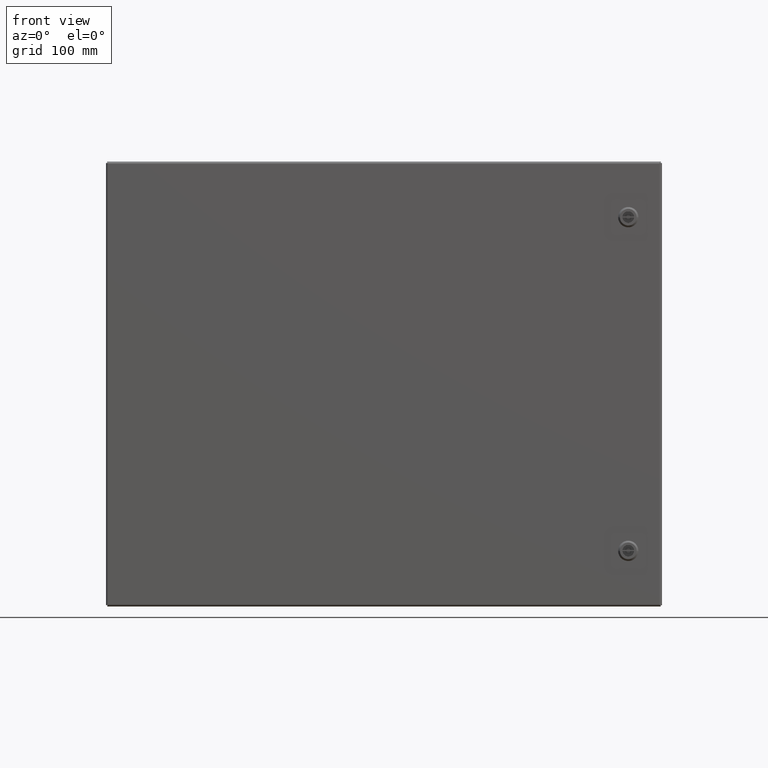
[diagram: clean part render]
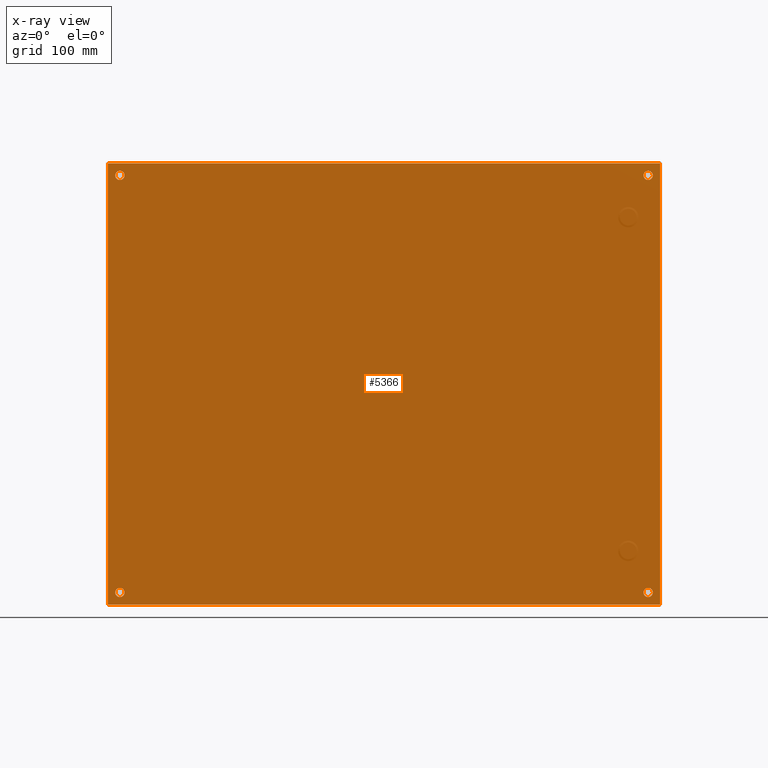
[diagram: x-ray — body ghosted, one internal face saturated and labeled with its STEP entity id]
A machine part, front view, then the same camera in x-ray: the body is ghosted and one INTERNAL B-rep face — a face not visible from any outside direction — is saturated and labeled: STEP entity #5366.
In plain terms, the highlighted planar face has unit normal (0, -1, -0).
Its self-contained STEP definition (entity closure, byte-faithful):
#165 = DIRECTION ( 'NONE',  ( 0.0000000000000000000, -1.000000000000000000, -0.0000000000000000000 ) ) ;
#398 = ORIENTED_EDGE ( 'NONE', *, *, #18365, .T. ) ;
#760 = ORIENTED_EDGE ( 'NONE', *, *, #12721, .T. ) ;
#1159 = CIRCLE ( 'NONE', #5802, 0.2500000000000008882 ) ;
#1166 = DIRECTION ( 'NONE',  ( 1.000000000000000000, 0.0000000000000000000, 0.0000000000000000000 ) ) ;
#1354 = VERTEX_POINT ( 'NONE', #17094 ) ;
#2201 = AXIS2_PLACEMENT_3D ( 'NONE', #4647, #22921, #6503 ) ;
#2407 = CARTESIAN_POINT ( 'NONE',  ( -14.00000000000000000, -0.07199999999999857903, -11.25000000000000000 ) ) ;
#2625 = AXIS2_PLACEMENT_3D ( 'NONE', #4128, #165, #8233 ) ;
#3046 = CIRCLE ( 'NONE', #2201, 0.2500000000000008882 ) ;
#3112 = VERTEX_POINT ( 'NONE', #3607 ) ;
#3391 = CARTESIAN_POINT ( 'NONE',  ( -14.92799999999999905, -0.07200000000000000844, 11.89200000000000124 ) ) ;
#3420 = CARTESIAN_POINT ( 'NONE',  ( 14.50000000000000178, -0.07199999999999857903, -11.25000000000000000 ) ) ;
#3525 = DIRECTION ( 'NONE',  ( -1.000000000000000000, 0.0000000000000000000, -6.123031769111889989E-17 ) ) ;
#3529 = CARTESIAN_POINT ( 'NONE',  ( -14.92799999999999905, -0.07200000000000000844, -11.89200000000000124 ) ) ;
#3607 = CARTESIAN_POINT ( 'NONE',  ( 14.89200000000000124, -0.07199999999999980027, 11.89200000000000124 ) ) ;
#3924 = EDGE_CURVE ( 'NONE', #6342, #22305, #10663, .T. ) ;
#4128 = CARTESIAN_POINT ( 'NONE',  ( -14.92799999999999905, -0.07200000000000000844, 11.92800000000000082 ) ) ;
#4492 = DIRECTION ( 'NONE',  ( 1.000000000000000000, 0.0000000000000000000, 0.0000000000000000000 ) ) ;
#4523 = DIRECTION ( 'NONE',  ( 0.0000000000000000000, 1.000000000000000000, 0.0000000000000000000 ) ) ;
#4609 = CARTESIAN_POINT ( 'NONE',  ( 14.25000000000000000, -0.07199999999999857903, 11.25000000000000000 ) ) ;
#4647 = CARTESIAN_POINT ( 'NONE',  ( 14.25000000000000000, -0.07199999999999857903, -11.25000000000000000 ) ) ;
#4731 = VERTEX_POINT ( 'NONE', #8984 ) ;
#5245 = EDGE_CURVE ( 'NONE', #25354, #20732, #25051, .T. ) ;
#5366 = ADVANCED_FACE ( 'NONE', ( #6364, #8493, #10600, #8101, #18567 ), #6108, .T. ) ;
#5675 = CARTESIAN_POINT ( 'NONE',  ( -14.89200000000000124, -0.07200000000000097988, -11.89199999999999413 ) ) ;
#5802 = AXIS2_PLACEMENT_3D ( 'NONE', #11757, #17993, #24193 ) ;
#6085 = EDGE_LOOP ( 'NONE', ( #18192, #6343 ) ) ;
#6108 = PLANE ( 'NONE',  #2625 ) ;
#6342 = VERTEX_POINT ( 'NONE', #2407 ) ;
#6343 = ORIENTED_EDGE ( 'NONE', *, *, #12214, .T. ) ;
#6364 = FACE_BOUND ( 'NONE', #12899, .T. ) ;
#6433 = CIRCLE ( 'NONE', #14058, 0.2500000000000008882 ) ;
#6503 = DIRECTION ( 'NONE',  ( 1.000000000000000000, 0.0000000000000000000, 0.0000000000000000000 ) ) ;
#6536 = ORIENTED_EDGE ( 'NONE', *, *, #9877, .T. ) ;
#6912 = VERTEX_POINT ( 'NONE', #3420 ) ;
#7304 = EDGE_CURVE ( 'NONE', #4731, #16068, #17747, .T. ) ;
#7335 = EDGE_LOOP ( 'NONE', ( #13517, #12490, #398, #6536 ) ) ;
#7444 = ORIENTED_EDGE ( 'NONE', *, *, #17869, .T. ) ;
#8101 = FACE_BOUND ( 'NONE', #12485, .T. ) ;
#8233 = DIRECTION ( 'NONE',  ( -1.000000000000000000, 0.0000000000000000000, -6.123031769111889989E-17 ) ) ;
#8493 = FACE_OUTER_BOUND ( 'NONE', #7335, .T. ) ;
#8593 = CARTESIAN_POINT ( 'NONE',  ( -14.25000000000000000, -0.07199999999999857903, -11.25000000000000000 ) ) ;
#8887 = DIRECTION ( 'NONE',  ( 1.000000000000000000, 0.0000000000000000000, 0.0000000000000000000 ) ) ;
#8984 = CARTESIAN_POINT ( 'NONE',  ( -14.50000000000000178, -0.07199999999999857903, 11.25000000000000000 ) ) ;
#9452 = ORIENTED_EDGE ( 'NONE', *, *, #3924, .T. ) ;
#9767 = CARTESIAN_POINT ( 'NONE',  ( -14.25000000000000000, -0.07199999999999857903, -11.25000000000000000 ) ) ;
#9877 = EDGE_CURVE ( 'NONE', #14088, #1354, #19816, .T. ) ;
#10008 = EDGE_CURVE ( 'NONE', #1354, #3112, #19136, .T. ) ;
#10060 = CARTESIAN_POINT ( 'NONE',  ( -14.89200000000000124, -0.07200000000000000844, 11.92800000000000082 ) ) ;
#10257 = DIRECTION ( 'NONE',  ( 1.000000000000000000, 0.0000000000000000000, 0.0000000000000000000 ) ) ;
#10600 = FACE_BOUND ( 'NONE', #10892, .T. ) ;
#10663 = CIRCLE ( 'NONE', #14045, 0.2500000000000008882 ) ;
#10892 = EDGE_LOOP ( 'NONE', ( #7444, #25068 ) ) ;
#11304 = CARTESIAN_POINT ( 'NONE',  ( -14.00000000000000000, -0.07199999999999857903, 11.25000000000000000 ) ) ;
#11599 = ORIENTED_EDGE ( 'NONE', *, *, #18575, .T. ) ;
#11600 = DIRECTION ( 'NONE',  ( 1.000000000000000000, -0.0000000000000000000, 6.123031769111889989E-17 ) ) ;
#11757 = CARTESIAN_POINT ( 'NONE',  ( -14.25000000000000000, -0.07199999999999857903, 11.25000000000000000 ) ) ;
#12214 = EDGE_CURVE ( 'NONE', #15157, #6912, #3046, .T. ) ;
#12218 = EDGE_CURVE ( 'NONE', #6912, #15157, #13189, .T. ) ;
#12453 = CARTESIAN_POINT ( 'NONE',  ( 14.25000000000000000, -0.07199999999999857903, 11.25000000000000000 ) ) ;
#12485 = EDGE_LOOP ( 'NONE', ( #9452, #760 ) ) ;
#12490 = ORIENTED_EDGE ( 'NONE', *, *, #18863, .T. ) ;
#12721 = EDGE_CURVE ( 'NONE', #22305, #6342, #6433, .T. ) ;
#12762 = CARTESIAN_POINT ( 'NONE',  ( 14.89200000000000124, -0.07200000000000000844, 11.92800000000000082 ) ) ;
#12899 = EDGE_LOOP ( 'NONE', ( #11599, #24555 ) ) ;
#12912 = CARTESIAN_POINT ( 'NONE',  ( 14.00000000000000000, -0.07199999999999857903, 11.25000000000000000 ) ) ;
#13189 = CIRCLE ( 'NONE', #18697, 0.2500000000000008882 ) ;
#13517 = ORIENTED_EDGE ( 'NONE', *, *, #10008, .T. ) ;
#14045 = AXIS2_PLACEMENT_3D ( 'NONE', #9767, #17852, #1166 ) ;
#14058 = AXIS2_PLACEMENT_3D ( 'NONE', #8593, #15451, #4492 ) ;
#14088 = VERTEX_POINT ( 'NONE', #5675 ) ;
#14539 = DIRECTION ( 'NONE',  ( 0.0000000000000000000, 1.000000000000000000, 0.0000000000000000000 ) ) ;
#15157 = VERTEX_POINT ( 'NONE', #17529 ) ;
#15451 = DIRECTION ( 'NONE',  ( 0.0000000000000000000, 1.000000000000000000, 0.0000000000000000000 ) ) ;
#16068 = VERTEX_POINT ( 'NONE', #11304 ) ;
#16226 = CARTESIAN_POINT ( 'NONE',  ( -14.25000000000000000, -0.07199999999999857903, 11.25000000000000000 ) ) ;
#16708 = CARTESIAN_POINT ( 'NONE',  ( 14.25000000000000000, -0.07199999999999857903, -11.25000000000000000 ) ) ;
#16807 = VECTOR ( 'NONE', #3525, 39.37007874015748143 ) ;
#17094 = CARTESIAN_POINT ( 'NONE',  ( 14.89200000000000124, -0.07200000000000078559, -11.89200000000000124 ) ) ;
#17529 = CARTESIAN_POINT ( 'NONE',  ( 14.00000000000000000, -0.07199999999999857903, -11.25000000000000000 ) ) ;
#17747 = CIRCLE ( 'NONE', #21534, 0.2500000000000008882 ) ;
#17852 = DIRECTION ( 'NONE',  ( 0.0000000000000000000, 1.000000000000000000, 0.0000000000000000000 ) ) ;
#17869 = EDGE_CURVE ( 'NONE', #20732, #25354, #21852, .T. ) ;
#17993 = DIRECTION ( 'NONE',  ( 0.0000000000000000000, 1.000000000000000000, 0.0000000000000000000 ) ) ;
#18192 = ORIENTED_EDGE ( 'NONE', *, *, #12218, .T. ) ;
#18365 = EDGE_CURVE ( 'NONE', #25749, #14088, #20124, .T. ) ;
#18481 = DIRECTION ( 'NONE',  ( 0.0000000000000000000, 1.000000000000000000, 0.0000000000000000000 ) ) ;
#18567 = FACE_BOUND ( 'NONE', #6085, .T. ) ;
#18575 = EDGE_CURVE ( 'NONE', #16068, #4731, #1159, .T. ) ;
#18697 = AXIS2_PLACEMENT_3D ( 'NONE', #16708, #20813, #8887 ) ;
#18863 = EDGE_CURVE ( 'NONE', #3112, #25749, #21275, .T. ) ;
#19136 = LINE ( 'NONE', #12762, #23679 ) ;
#19816 = LINE ( 'NONE', #3529, #20299 ) ;
#19922 = CARTESIAN_POINT ( 'NONE',  ( -14.50000000000000178, -0.07199999999999857903, -11.25000000000000000 ) ) ;
#20124 = LINE ( 'NONE', #10060, #20607 ) ;
#20299 = VECTOR ( 'NONE', #11600, 39.37007874015748143 ) ;
#20607 = VECTOR ( 'NONE', #26210, 39.37007874015748143 ) ;
#20722 = CARTESIAN_POINT ( 'NONE',  ( 14.50000000000000178, -0.07199999999999857903, 11.25000000000000000 ) ) ;
#20732 = VERTEX_POINT ( 'NONE', #20722 ) ;
#20770 = DIRECTION ( 'NONE',  ( 1.000000000000000000, 0.0000000000000000000, 0.0000000000000000000 ) ) ;
#20813 = DIRECTION ( 'NONE',  ( 0.0000000000000000000, 1.000000000000000000, 0.0000000000000000000 ) ) ;
#20990 = DIRECTION ( 'NONE',  ( -6.123031769111889989E-17, -0.0000000000000000000, 1.000000000000000000 ) ) ;
#21275 = LINE ( 'NONE', #3391, #16807 ) ;
#21534 = AXIS2_PLACEMENT_3D ( 'NONE', #16226, #18481, #10257 ) ;
#21852 = CIRCLE ( 'NONE', #23551, 0.2500000000000008882 ) ;
#22271 = DIRECTION ( 'NONE',  ( 1.000000000000000000, 0.0000000000000000000, 0.0000000000000000000 ) ) ;
#22305 = VERTEX_POINT ( 'NONE', #19922 ) ;
#22921 = DIRECTION ( 'NONE',  ( 0.0000000000000000000, 1.000000000000000000, 0.0000000000000000000 ) ) ;
#23551 = AXIS2_PLACEMENT_3D ( 'NONE', #4609, #14539, #20770 ) ;
#23679 = VECTOR ( 'NONE', #20990, 39.37007874015748143 ) ;
#24187 = AXIS2_PLACEMENT_3D ( 'NONE', #12453, #4523, #22271 ) ;
#24193 = DIRECTION ( 'NONE',  ( 1.000000000000000000, 0.0000000000000000000, 0.0000000000000000000 ) ) ;
#24555 = ORIENTED_EDGE ( 'NONE', *, *, #7304, .T. ) ;
#25051 = CIRCLE ( 'NONE', #24187, 0.2500000000000008882 ) ;
#25068 = ORIENTED_EDGE ( 'NONE', *, *, #5245, .T. ) ;
#25300 = CARTESIAN_POINT ( 'NONE',  ( -14.89200000000000124, -0.07199999999999960598, 11.89200000000000124 ) ) ;
#25354 = VERTEX_POINT ( 'NONE', #12912 ) ;
#25749 = VERTEX_POINT ( 'NONE', #25300 ) ;
#26210 = DIRECTION ( 'NONE',  ( 6.123031769111889989E-17, 0.0000000000000000000, -1.000000000000000000 ) ) ;